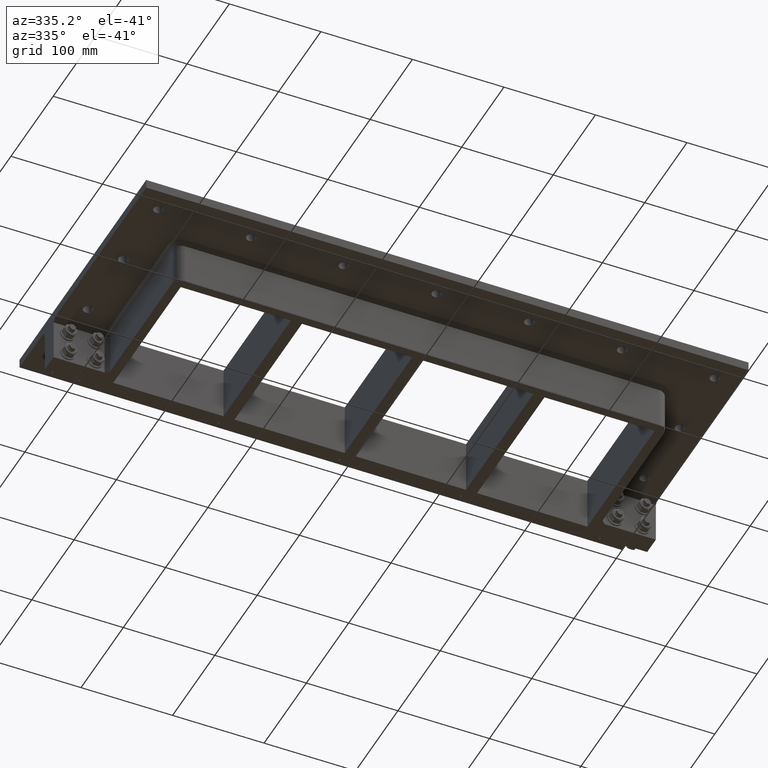
[diagram: clean part render]
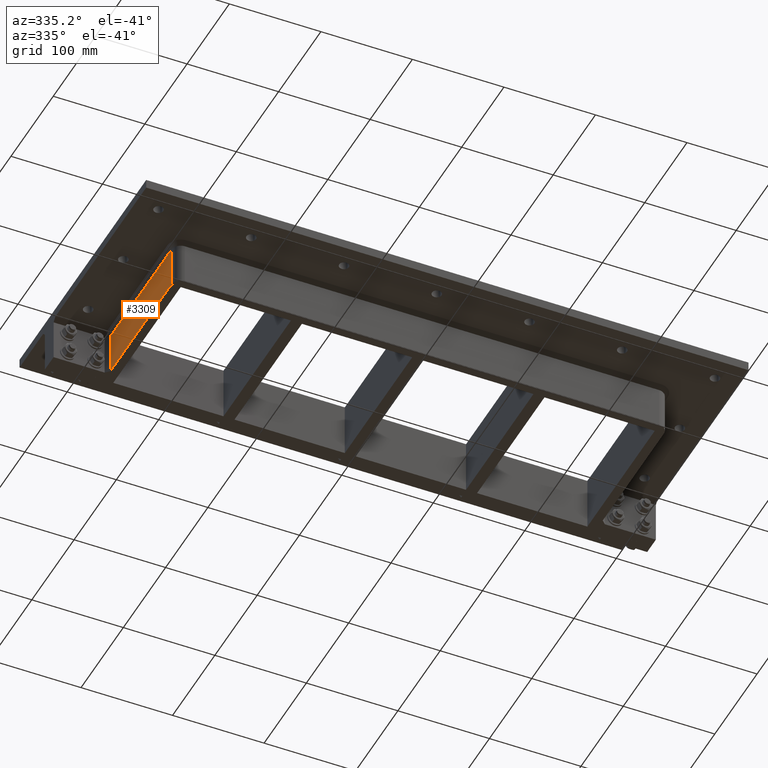
[diagram: same view with one face highlighted and labeled with its STEP entity id]
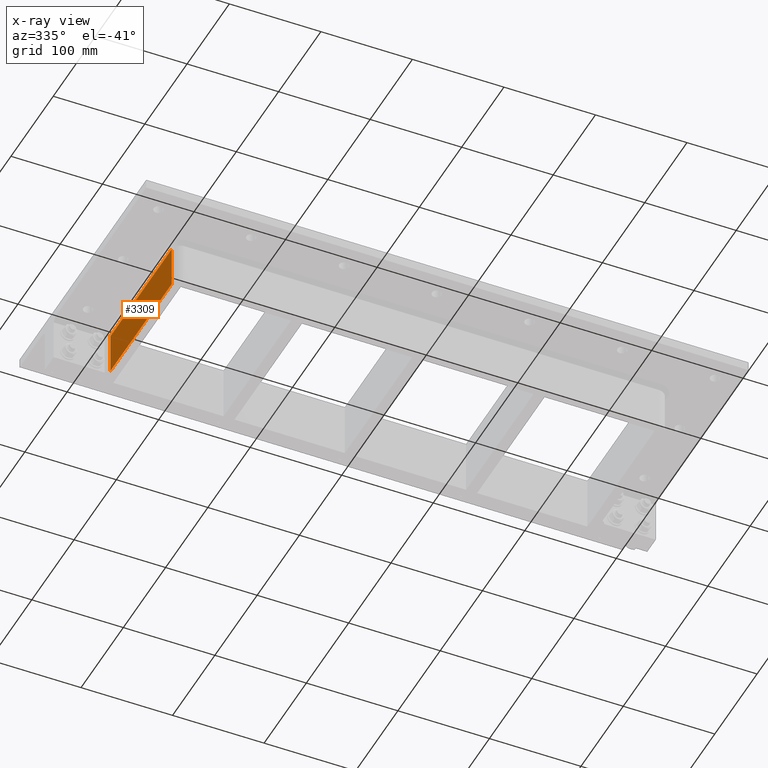
[diagram: x-ray of the same camera — body ghosted, the highlighted face saturated]
A machine part, auxiliary view. The second image highlights one B-rep face of the part: STEP entity #3309.
The next image is the same camera in x-ray: the body ghosted, the highlighted face saturated — about 0% of this face is hidden behind the body in this view.
In plain terms, the highlighted planar face has unit normal (-1, 0, 0).
Its self-contained STEP definition (entity closure, byte-faithful):
#602=FACE_OUTER_BOUND('',#825,.T.);
#825=EDGE_LOOP('',(#2547,#2548,#2549,#2550));
#1039=LINE('',#5054,#1298);
#1053=LINE('',#5089,#1312);
#1112=LINE('',#5285,#1371);
#1142=LINE('',#5362,#1401);
#1298=VECTOR('',#4049,10.);
#1312=VECTOR('',#4083,10.);
#1371=VECTOR('',#4266,10.);
#1401=VECTOR('',#4340,10.);
#1551=VERTEX_POINT('',#5039);
#1556=VERTEX_POINT('',#5052);
#1567=VERTEX_POINT('',#5083);
#1642=VERTEX_POINT('',#5283);
#1846=EDGE_CURVE('',#1556,#1551,#1039,.T.);
#1864=EDGE_CURVE('',#1551,#1567,#1053,.T.);
#1960=EDGE_CURVE('',#1642,#1556,#1112,.T.);
#2001=EDGE_CURVE('',#1567,#1642,#1142,.T.);
#2547=ORIENTED_EDGE('',*,*,#1846,.F.);
#2548=ORIENTED_EDGE('',*,*,#1960,.F.);
#2549=ORIENTED_EDGE('',*,*,#2001,.F.);
#2550=ORIENTED_EDGE('',*,*,#1864,.F.);
#3197=PLANE('',#3758);
#3309=ADVANCED_FACE('',(#602),#3197,.T.);
#3758=AXIS2_PLACEMENT_3D('',#5361,#4338,#4339);
#4049=DIRECTION('',(0.,0.,1.));
#4083=DIRECTION('',(-4.45481339034546E-16,-1.,0.));
#4266=DIRECTION('',(4.45481339034546E-16,1.,0.));
#4338=DIRECTION('center_axis',(-1.,4.45481339034546E-16,0.));
#4339=DIRECTION('ref_axis',(4.45481339034546E-16,1.,0.));
#4340=DIRECTION('',(0.,0.,-1.));
#5039=CARTESIAN_POINT('',(-269.,64.95,-14.3));
#5052=CARTESIAN_POINT('',(-269.,64.95,-60.));
#5054=CARTESIAN_POINT('',(-269.,64.95,0.));
#5083=CARTESIAN_POINT('',(-269.,-79.7500000000001,-14.3));
#5089=CARTESIAN_POINT('',(-269.,-39.875,-14.3));
#5283=CARTESIAN_POINT('',(-269.,-79.7500000000001,-60.));
#5285=CARTESIAN_POINT('',(-269.,79.7499999999999,-60.));
#5361=CARTESIAN_POINT('Origin',(-269.,-79.7500000000001,0.));
#5362=CARTESIAN_POINT('',(-269.,-79.7500000000001,0.));